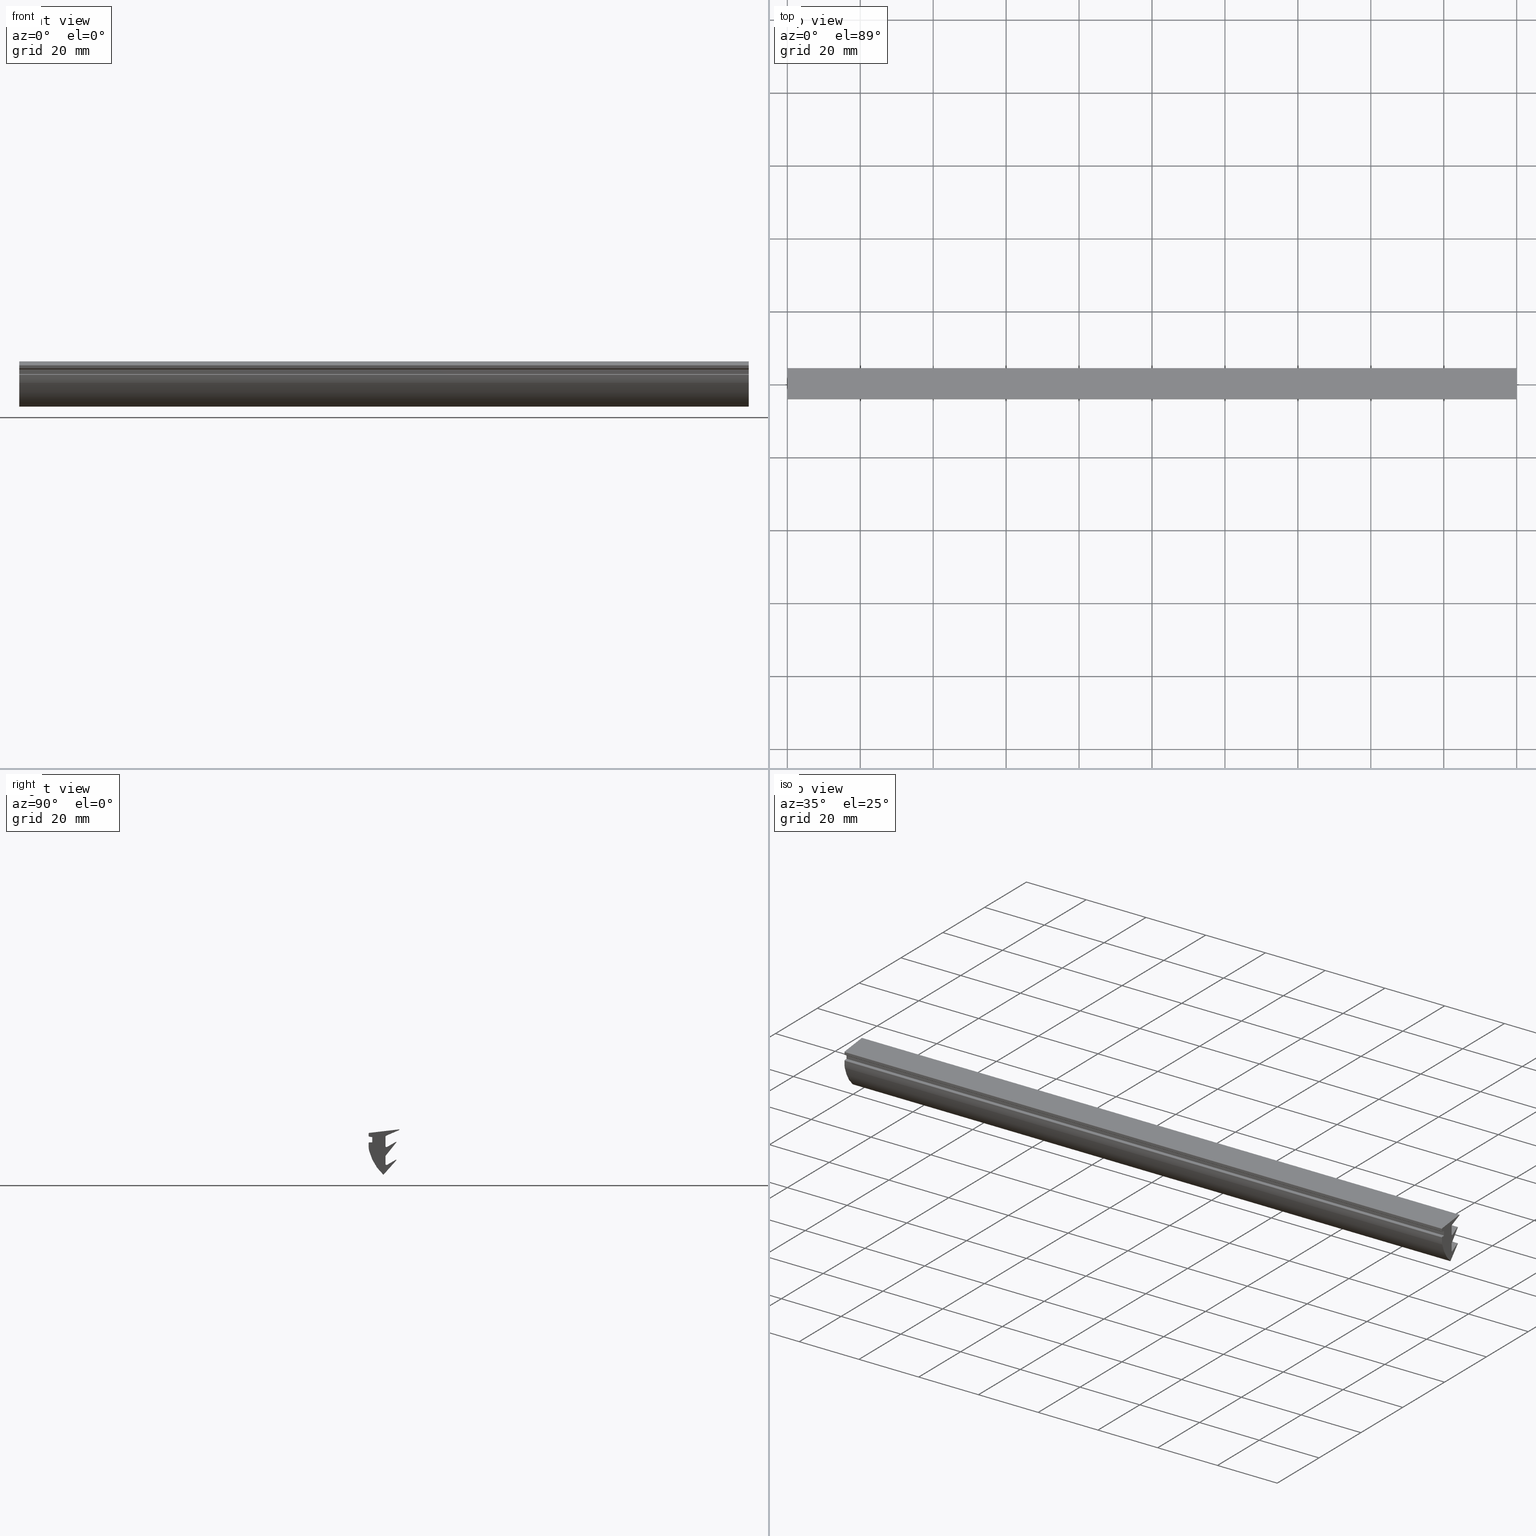
[diagram: canonical four-view strip — front | top / right | iso, engineering-drawing reading convention]
A machine part, canonical four-view strip (front | top / right | iso — engineering-drawing reading convention). The complete STEP part file that produces these views, byte-faithful:
ISO-10303-21;
HEADER;
/****************************************************************
 * Generated by software with PDE/Lib inside                    *
 * PDElib Version v4.4, created Mon 02/23/2004                  *
 * International Technegroup Inc. (www.iti-oh.com)              *
 ****************************************************************/
FILE_DESCRIPTION(('STEP AP203'),'2;1');
FILE_NAME('21.052.00.stp','2011-02-14T09:06:05',(''),(''),'2009.3.110','THINKDESIGN','');
FILE_SCHEMA(('CONFIG_CONTROL_DESIGN'));
ENDSEC;
DATA;
#2=CARTESIAN_POINT('',(200.000000010000010,9.019225754930282,9.767145787373272));
#3=DIRECTION('',(-1.0,0.0,0.0));
#4=DIRECTION('',(0.0,-1.0,6.123234E-017));
#5=AXIS2_PLACEMENT_3D('',#2,#3,#4);
#6=CYLINDRICAL_SURFACE('',#5,13.396656669607449);
#7=CARTESIAN_POINT('',(0.0,-0.143060386871170,-0.006437106278618));
#8=VERTEX_POINT('',#7);
#9=CARTESIAN_POINT('',(0.0,-3.967215729280877,6.477351340832984));
#10=VERTEX_POINT('',#9);
#11=CARTESIAN_POINT('',(0.0,9.019225754930282,9.767145787373272));
#12=DIRECTION('',(-1.0,0.0,0.0));
#13=DIRECTION('',(0.0,-1.0,6.123234E-017));
#14=AXIS2_PLACEMENT_3D('',#11,#12,#13);
#15=CIRCLE('',#14,13.396656669607449);
#16=EDGE_CURVE('',#8,#10,#15,.T.);
#17=ORIENTED_EDGE('',*,*,#16,.F.);
#18=CARTESIAN_POINT('',(200.0,-0.143060386871170,-0.006437106278618));
#19=VERTEX_POINT('',#18);
#20=CARTESIAN_POINT('',(200.0,-0.143060386871170,-0.006437106278618));
#21=DIRECTION('',(-1.0,0.0,0.0));
#22=VECTOR('',#21,200.0);
#23=LINE('',#20,#22);
#24=EDGE_CURVE('',#19,#8,#23,.T.);
#25=ORIENTED_EDGE('',*,*,#24,.F.);
#26=CARTESIAN_POINT('',(200.0,-3.967215729280877,6.477351340832984));
#27=VERTEX_POINT('',#26);
#28=CARTESIAN_POINT('',(200.0,9.019225754930282,9.767145787373272));
#29=DIRECTION('',(-1.0,0.0,0.0));
#30=DIRECTION('',(0.0,-1.0,6.123234E-017));
#31=AXIS2_PLACEMENT_3D('',#28,#29,#30);
#32=CIRCLE('',#31,13.396656669607449);
#33=EDGE_CURVE('',#19,#27,#32,.T.);
#34=ORIENTED_EDGE('',*,*,#33,.T.);
#35=CARTESIAN_POINT('',(200.0,-3.967215729280877,6.477351340832984));
#36=DIRECTION('',(-1.0,0.0,0.0));
#37=VECTOR('',#36,200.0);
#38=LINE('',#35,#37);
#39=EDGE_CURVE('',#27,#10,#38,.T.);
#40=ORIENTED_EDGE('',*,*,#39,.T.);
#41=EDGE_LOOP('',(#17,#25,#34,#40));
#42=FACE_OUTER_BOUND('',#41,.T.);
#43=ADVANCED_FACE('',(#42),#6,.T.);
#44=CARTESIAN_POINT('',(200.000000010000010,1.012162107598378,7.738753825486475));
#45=DIRECTION('',(-1.0,0.0,0.0));
#46=DIRECTION('',(0.0,0.992315294280383,0.123735026315252));
#47=AXIS2_PLACEMENT_3D('',#44,#45,#46);
#48=CYLINDRICAL_SURFACE('',#47,5.136666221460594);
#49=CARTESIAN_POINT('',(0.0,-4.124504113862219,7.738753825486475));
#50=VERTEX_POINT('',#49);
#51=CARTESIAN_POINT('',(0.0,1.012162107598375,7.738753825486475));
#52=DIRECTION('',(-1.0,0.0,0.0));
#53=DIRECTION('',(0.0,1.0,-6.123234E-017));
#54=AXIS2_PLACEMENT_3D('',#51,#52,#53);
#55=CIRCLE('',#54,5.136666221460594);
#56=EDGE_CURVE('',#10,#50,#55,.T.);
#57=ORIENTED_EDGE('',*,*,#56,.F.);
#58=ORIENTED_EDGE('',*,*,#39,.F.);
#59=CARTESIAN_POINT('',(200.0,-4.124504113862219,7.738753825486475));
#60=VERTEX_POINT('',#59);
#61=CARTESIAN_POINT('',(200.0,1.012162107598375,7.738753825486475));
#62=DIRECTION('',(-1.0,0.0,0.0));
#63=DIRECTION('',(0.0,1.0,-6.123234E-017));
#64=AXIS2_PLACEMENT_3D('',#61,#62,#63);
#65=CIRCLE('',#64,5.136666221460594);
#66=EDGE_CURVE('',#27,#60,#65,.T.);
#67=ORIENTED_EDGE('',*,*,#66,.T.);
#68=CARTESIAN_POINT('',(200.0,-4.124504113862219,7.738753825486475));
#69=DIRECTION('',(-1.0,0.0,0.0));
#70=VECTOR('',#69,200.0);
#71=LINE('',#68,#70);
#72=EDGE_CURVE('',#60,#50,#71,.T.);
#73=ORIENTED_EDGE('',*,*,#72,.T.);
#74=EDGE_LOOP('',(#57,#58,#67,#73));
#75=FACE_OUTER_BOUND('',#74,.T.);
#76=ADVANCED_FACE('',(#75),#48,.T.);
#77=CARTESIAN_POINT('',(-10.0,-4.124504113862219,7.694944270244813));
#78=DIRECTION('',(0.0,-1.0,0.0));
#79=DIRECTION('',(1.0,0.0,0.0));
#80=AXIS2_PLACEMENT_3D('',#77,#78,#79);
#81=PLANE('',#80);
#82=CARTESIAN_POINT('',(0.0,-4.124504113862219,8.614944930319709));
#83=VERTEX_POINT('',#82);
#84=CARTESIAN_POINT('',(0.0,-4.124504113862219,7.738753825486475));
#85=DIRECTION('',(0.0,0.0,1.0));
#86=VECTOR('',#85,0.876191104833234);
#87=LINE('',#84,#86);
#88=EDGE_CURVE('',#50,#83,#87,.T.);
#89=ORIENTED_EDGE('',*,*,#88,.F.);
#90=ORIENTED_EDGE('',*,*,#72,.F.);
#91=CARTESIAN_POINT('',(200.0,-4.124504113862219,8.614944930319709));
#92=VERTEX_POINT('',#91);
#93=CARTESIAN_POINT('',(200.0,-4.124504113862219,7.738753825486475));
#94=DIRECTION('',(0.0,0.0,1.0));
#95=VECTOR('',#94,0.876191104833234);
#96=LINE('',#93,#95);
#97=EDGE_CURVE('',#60,#92,#96,.T.);
#98=ORIENTED_EDGE('',*,*,#97,.T.);
#99=CARTESIAN_POINT('',(200.0,-4.124504113862219,8.614944930319709));
#100=DIRECTION('',(-1.0,0.0,0.0));
#101=VECTOR('',#100,200.0);
#102=LINE('',#99,#101);
#103=EDGE_CURVE('',#92,#83,#102,.T.);
#104=ORIENTED_EDGE('',*,*,#103,.T.);
#105=EDGE_LOOP('',(#89,#90,#98,#104));
#106=FACE_OUTER_BOUND('',#105,.T.);
#107=ADVANCED_FACE('',(#106),#81,.T.);
#108=CARTESIAN_POINT('',(200.000000010000010,-3.924504113862220,8.614944930319709));
#109=DIRECTION('',(-1.0,0.0,0.0));
#110=DIRECTION('',(0.0,0.707106781186547,-0.707106781186548));
#111=AXIS2_PLACEMENT_3D('',#108,#109,#110);
#112=CYLINDRICAL_SURFACE('',#111,0.199999999999999);
#113=CARTESIAN_POINT('',(0.0,-3.924504113862220,8.814944930319713));
#114=VERTEX_POINT('',#113);
#115=CARTESIAN_POINT('',(0.0,-3.924504113862220,8.614944930319709));
#116=DIRECTION('',(-1.0,0.0,0.0));
#117=DIRECTION('',(0.0,1.0,-6.123234E-017));
#118=AXIS2_PLACEMENT_3D('',#115,#116,#117);
#119=CIRCLE('',#118,0.199999999999999);
#120=EDGE_CURVE('',#83,#114,#119,.T.);
#121=ORIENTED_EDGE('',*,*,#120,.F.);
#122=ORIENTED_EDGE('',*,*,#103,.F.);
#123=CARTESIAN_POINT('',(200.0,-3.924504113862220,8.814944930319713));
#124=VERTEX_POINT('',#123);
#125=CARTESIAN_POINT('',(200.0,-3.924504113862220,8.614944930319709));
#126=DIRECTION('',(-1.0,0.0,0.0));
#127=DIRECTION('',(0.0,1.0,-6.123234E-017));
#128=AXIS2_PLACEMENT_3D('',#125,#126,#127);
#129=CIRCLE('',#128,0.199999999999999);
#130=EDGE_CURVE('',#92,#124,#129,.T.);
#131=ORIENTED_EDGE('',*,*,#130,.T.);
#132=CARTESIAN_POINT('',(200.0,-3.924504113862220,8.814944930319713));
#133=DIRECTION('',(-1.0,0.0,0.0));
#134=VECTOR('',#133,200.0);
#135=LINE('',#132,#134);
#136=EDGE_CURVE('',#124,#114,#135,.T.);
#137=ORIENTED_EDGE('',*,*,#136,.T.);
#138=EDGE_LOOP('',(#121,#122,#131,#137));
#139=FACE_OUTER_BOUND('',#138,.T.);
#140=ADVANCED_FACE('',(#139),#112,.T.);
#141=CARTESIAN_POINT('',(210.0,-3.196052271566707,8.814944930319713));
#142=DIRECTION('',(0.0,0.0,1.0));
#143=DIRECTION('',(-1.0,0.0,0.0));
#144=AXIS2_PLACEMENT_3D('',#141,#142,#143);
#145=PLANE('',#144);
#146=CARTESIAN_POINT('',(0.0,-3.230740454533159,8.814944930319713));
#147=VERTEX_POINT('',#146);
#148=CARTESIAN_POINT('',(0.0,-3.924504113862220,8.814944930319713));
#149=DIRECTION('',(0.0,1.0,0.0));
#150=VECTOR('',#149,0.693763659329061);
#151=LINE('',#148,#150);
#152=EDGE_CURVE('',#114,#147,#151,.T.);
#153=ORIENTED_EDGE('',*,*,#152,.F.);
#154=ORIENTED_EDGE('',*,*,#136,.F.);
#155=CARTESIAN_POINT('',(200.0,-3.230740454533159,8.814944930319713));
#156=VERTEX_POINT('',#155);
#157=CARTESIAN_POINT('',(200.0,-3.924504113862220,8.814944930319713));
#158=DIRECTION('',(0.0,1.0,0.0));
#159=VECTOR('',#158,0.693763659329061);
#160=LINE('',#157,#159);
#161=EDGE_CURVE('',#124,#156,#160,.T.);
#162=ORIENTED_EDGE('',*,*,#161,.T.);
#163=CARTESIAN_POINT('',(200.0,-3.230740454533159,8.814944930319713));
#164=DIRECTION('',(-1.0,0.0,0.0));
#165=VECTOR('',#164,200.0);
#166=LINE('',#163,#165);
#167=EDGE_CURVE('',#156,#147,#166,.T.);
#168=ORIENTED_EDGE('',*,*,#167,.T.);
#169=EDGE_LOOP('',(#153,#154,#162,#168));
#170=FACE_OUTER_BOUND('',#169,.T.);
#171=ADVANCED_FACE('',(#170),#145,.T.);
#172=CARTESIAN_POINT('',(200.000000010000010,-3.230740454533159,8.914944930319715));
#173=DIRECTION('',(-1.0,0.0,0.0));
#174=DIRECTION('',(0.0,-1.0,6.123234E-017));
#175=AXIS2_PLACEMENT_3D('',#172,#173,#174);
#176=CYLINDRICAL_SURFACE('',#175,0.099999999999999);
#177=CARTESIAN_POINT('',(0.0,-3.130740454533157,8.914944930319708));
#178=VERTEX_POINT('',#177);
#179=CARTESIAN_POINT('',(0.0,-3.230740454533159,8.914944930319715));
#180=DIRECTION('',(1.0,0.0,0.0));
#181=DIRECTION('',(0.0,-1.0,6.123234E-017));
#182=AXIS2_PLACEMENT_3D('',#179,#180,#181);
#183=CIRCLE('',#182,0.099999999999999);
#184=EDGE_CURVE('',#147,#178,#183,.T.);
#185=ORIENTED_EDGE('',*,*,#184,.F.);
#186=ORIENTED_EDGE('',*,*,#167,.F.);
#187=CARTESIAN_POINT('',(200.0,-3.130740454533157,8.914944930319708));
#188=VERTEX_POINT('',#187);
#189=CARTESIAN_POINT('',(200.0,-3.230740454533159,8.914944930319715));
#190=DIRECTION('',(1.0,0.0,0.0));
#191=DIRECTION('',(0.0,-1.0,6.123234E-017));
#192=AXIS2_PLACEMENT_3D('',#189,#190,#191);
#193=CIRCLE('',#192,0.099999999999999);
#194=EDGE_CURVE('',#156,#188,#193,.T.);
#195=ORIENTED_EDGE('',*,*,#194,.T.);
#196=CARTESIAN_POINT('',(200.0,-3.130740454533157,8.914944930319708));
#197=DIRECTION('',(-1.0,0.0,0.0));
#198=VECTOR('',#197,200.0);
#199=LINE('',#196,#198);
#200=EDGE_CURVE('',#188,#178,#199,.T.);
#201=ORIENTED_EDGE('',*,*,#200,.T.);
#202=EDGE_LOOP('',(#185,#186,#195,#201));
#203=FACE_OUTER_BOUND('',#202,.T.);
#204=ADVANCED_FACE('',(#203),#176,.F.);
#205=CARTESIAN_POINT('',(-10.0,-3.130740454533157,8.853196808424455));
#206=DIRECTION('',(0.0,-1.0,0.0));
#207=DIRECTION('',(1.0,0.0,0.0));
#208=AXIS2_PLACEMENT_3D('',#205,#206,#207);
#209=PLANE('',#208);
#210=CARTESIAN_POINT('',(0.0,-3.130740454533157,10.149907368224751));
#211=VERTEX_POINT('',#210);
#212=CARTESIAN_POINT('',(0.0,-3.130740454533157,8.914944930319708));
#213=DIRECTION('',(0.0,0.0,1.0));
#214=VECTOR('',#213,1.234962437905043);
#215=LINE('',#212,#214);
#216=EDGE_CURVE('',#178,#211,#215,.T.);
#217=ORIENTED_EDGE('',*,*,#216,.F.);
#218=ORIENTED_EDGE('',*,*,#200,.F.);
#219=CARTESIAN_POINT('',(200.0,-3.130740454533157,10.149907368224751));
#220=VERTEX_POINT('',#219);
#221=CARTESIAN_POINT('',(200.0,-3.130740454533157,8.914944930319708));
#222=DIRECTION('',(0.0,0.0,1.0));
#223=VECTOR('',#222,1.234962437905043);
#224=LINE('',#221,#223);
#225=EDGE_CURVE('',#188,#220,#224,.T.);
#226=ORIENTED_EDGE('',*,*,#225,.T.);
#227=CARTESIAN_POINT('',(200.0,-3.130740454533157,10.149907368224751));
#228=DIRECTION('',(-1.0,0.0,0.0));
#229=VECTOR('',#228,200.0);
#230=LINE('',#227,#229);
#231=EDGE_CURVE('',#220,#211,#230,.T.);
#232=ORIENTED_EDGE('',*,*,#231,.T.);
#233=EDGE_LOOP('',(#217,#218,#226,#232));
#234=FACE_OUTER_BOUND('',#233,.T.);
#235=ADVANCED_FACE('',(#234),#209,.T.);
#236=CARTESIAN_POINT('',(200.000000010000010,-3.230740454533159,10.149907368224751));
#237=DIRECTION('',(-1.0,0.0,0.0));
#238=DIRECTION('',(0.0,-1.0,6.123234E-017));
#239=AXIS2_PLACEMENT_3D('',#236,#237,#238);
#240=CYLINDRICAL_SURFACE('',#239,0.099999999999999);
#241=CARTESIAN_POINT('',(0.0,-3.214995679239770,10.248660100090557));
#242=VERTEX_POINT('',#241);
#243=CARTESIAN_POINT('',(0.0,-3.230740454533159,10.149907368224751));
#244=DIRECTION('',(1.0,0.0,0.0));
#245=DIRECTION('',(0.0,-1.0,6.123234E-017));
#246=AXIS2_PLACEMENT_3D('',#243,#244,#245);
#247=CIRCLE('',#246,0.099999999999999);
#248=EDGE_CURVE('',#211,#242,#247,.T.);
#249=ORIENTED_EDGE('',*,*,#248,.F.);
#250=ORIENTED_EDGE('',*,*,#231,.F.);
#251=CARTESIAN_POINT('',(200.0,-3.214995679239770,10.248660100090557));
#252=VERTEX_POINT('',#251);
#253=CARTESIAN_POINT('',(200.0,-3.230740454533159,10.149907368224751));
#254=DIRECTION('',(1.0,0.0,0.0));
#255=DIRECTION('',(0.0,-1.0,6.123234E-017));
#256=AXIS2_PLACEMENT_3D('',#253,#254,#255);
#257=CIRCLE('',#256,0.099999999999999);
#258=EDGE_CURVE('',#220,#252,#257,.T.);
#259=ORIENTED_EDGE('',*,*,#258,.T.);
#260=CARTESIAN_POINT('',(200.0,-3.214995679239770,10.248660100090557));
#261=DIRECTION('',(-1.0,0.0,0.0));
#262=VECTOR('',#261,200.0);
#263=LINE('',#260,#262);
#264=EDGE_CURVE('',#252,#242,#263,.T.);
#265=ORIENTED_EDGE('',*,*,#264,.T.);
#266=EDGE_LOOP('',(#249,#250,#259,#265));
#267=FACE_OUTER_BOUND('',#266,.T.);
#268=ADVANCED_FACE('',(#267),#240,.F.);
#269=CARTESIAN_POINT('',(210.0,-3.177945779979311,10.242752999320009));
#270=DIRECTION('',(0.0,-0.157447752933786,-0.987527318658123));
#271=DIRECTION('',(0.0,-0.987527318658123,0.157447752933786));
#272=AXIS2_PLACEMENT_3D('',#269,#270,#271);
#273=PLANE('',#272);
#274=CARTESIAN_POINT('',(0.0,-3.955993664448972,10.366802115501516));
#275=VERTEX_POINT('',#274);
#276=CARTESIAN_POINT('',(0.0,-3.214995679239770,10.248660100090557));
#277=DIRECTION('',(0.0,-0.987527318658123,0.157447752933785));
#278=VECTOR('',#277,0.750356948318238);
#279=LINE('',#276,#278);
#280=EDGE_CURVE('',#242,#275,#279,.T.);
#281=ORIENTED_EDGE('',*,*,#280,.F.);
#282=ORIENTED_EDGE('',*,*,#264,.F.);
#283=CARTESIAN_POINT('',(200.0,-3.955993664448972,10.366802115501516));
#284=VERTEX_POINT('',#283);
#285=CARTESIAN_POINT('',(200.0,-3.214995679239770,10.248660100090557));
#286=DIRECTION('',(0.0,-0.987527318658123,0.157447752933785));
#287=VECTOR('',#286,0.750356948318238);
#288=LINE('',#285,#287);
#289=EDGE_CURVE('',#252,#284,#288,.T.);
#290=ORIENTED_EDGE('',*,*,#289,.T.);
#291=CARTESIAN_POINT('',(200.0,-3.955993664448972,10.366802115501516));
#292=DIRECTION('',(-1.0,0.0,0.0));
#293=VECTOR('',#292,200.0);
#294=LINE('',#291,#293);
#295=EDGE_CURVE('',#284,#275,#294,.T.);
#296=ORIENTED_EDGE('',*,*,#295,.T.);
#297=EDGE_LOOP('',(#281,#282,#290,#296));
#298=FACE_OUTER_BOUND('',#297,.T.);
#299=ADVANCED_FACE('',(#298),#273,.T.);
#300=CARTESIAN_POINT('',(200.000000010000010,-3.924504113862220,10.564307579233139));
#301=DIRECTION('',(-1.0,0.0,0.0));
#302=DIRECTION('',(0.0,0.760739033090113,0.649057873793331));
#303=AXIS2_PLACEMENT_3D('',#300,#301,#302);
#304=CYLINDRICAL_SURFACE('',#303,0.199999999999999);
#305=CARTESIAN_POINT('',(0.0,-4.124504113862219,10.564307579233141));
#306=VERTEX_POINT('',#305);
#307=CARTESIAN_POINT('',(0.0,-3.924504113862220,10.564307579233141));
#308=DIRECTION('',(-1.0,0.0,0.0));
#309=DIRECTION('',(0.0,1.0,-6.123234E-017));
#310=AXIS2_PLACEMENT_3D('',#307,#308,#309);
#311=CIRCLE('',#310,0.199999999999999);
#312=EDGE_CURVE('',#275,#306,#311,.T.);
#313=ORIENTED_EDGE('',*,*,#312,.F.);
#314=ORIENTED_EDGE('',*,*,#295,.F.);
#315=CARTESIAN_POINT('',(200.0,-4.124504113862219,10.564307579233141));
#316=VERTEX_POINT('',#315);
#317=CARTESIAN_POINT('',(200.0,-3.924504113862220,10.564307579233141));
#318=DIRECTION('',(-1.0,0.0,0.0));
#319=DIRECTION('',(0.0,1.0,-6.123234E-017));
#320=AXIS2_PLACEMENT_3D('',#317,#318,#319);
#321=CIRCLE('',#320,0.199999999999999);
#322=EDGE_CURVE('',#284,#316,#321,.T.);
#323=ORIENTED_EDGE('',*,*,#322,.T.);
#324=CARTESIAN_POINT('',(200.0,-4.124504113862219,10.564307579233141));
#325=DIRECTION('',(-1.0,0.0,0.0));
#326=VECTOR('',#325,200.0);
#327=LINE('',#324,#326);
#328=EDGE_CURVE('',#316,#306,#327,.T.);
#329=ORIENTED_EDGE('',*,*,#328,.T.);
#330=EDGE_LOOP('',(#313,#314,#323,#329));
#331=FACE_OUTER_BOUND('',#330,.T.);
#332=ADVANCED_FACE('',(#331),#304,.T.);
#333=CARTESIAN_POINT('',(-10.0,-4.124504113862219,10.531732999676530));
#334=DIRECTION('',(0.0,-1.0,0.0));
#335=DIRECTION('',(1.0,0.0,0.0));
#336=AXIS2_PLACEMENT_3D('',#333,#334,#335);
#337=PLANE('',#336);
#338=CARTESIAN_POINT('',(0.0,-4.124504113862219,11.215799170365372));
#339=VERTEX_POINT('',#338);
#340=CARTESIAN_POINT('',(0.0,-4.124504113862219,10.564307579233141));
#341=DIRECTION('',(0.0,0.0,1.0));
#342=VECTOR('',#341,0.651491591132229);
#343=LINE('',#340,#342);
#344=EDGE_CURVE('',#306,#339,#343,.T.);
#345=ORIENTED_EDGE('',*,*,#344,.F.);
#346=ORIENTED_EDGE('',*,*,#328,.F.);
#347=CARTESIAN_POINT('',(200.0,-4.124504113862219,11.215799170365372));
#348=VERTEX_POINT('',#347);
#349=CARTESIAN_POINT('',(200.0,-4.124504113862219,10.564307579233141));
#350=DIRECTION('',(0.0,0.0,1.0));
#351=VECTOR('',#350,0.651491591132229);
#352=LINE('',#349,#351);
#353=EDGE_CURVE('',#316,#348,#352,.T.);
#354=ORIENTED_EDGE('',*,*,#353,.T.);
#355=CARTESIAN_POINT('',(200.0,-4.124504113862219,11.215799170365372));
#356=DIRECTION('',(-1.0,0.0,0.0));
#357=VECTOR('',#356,200.0);
#358=LINE('',#355,#357);
#359=EDGE_CURVE('',#348,#339,#358,.T.);
#360=ORIENTED_EDGE('',*,*,#359,.T.);
#361=EDGE_LOOP('',(#345,#346,#354,#360));
#362=FACE_OUTER_BOUND('',#361,.T.);
#363=ADVANCED_FACE('',(#362),#337,.T.);
#364=CARTESIAN_POINT('',(200.000000010000010,-3.924504113862213,11.215799170365372));
#365=DIRECTION('',(-1.0,0.0,0.0));
#366=DIRECTION('',(0.0,0.747238876674902,-0.664555536569842));
#367=AXIS2_PLACEMENT_3D('',#364,#365,#366);
#368=CYLINDRICAL_SURFACE('',#367,0.199999999999999);
#369=CARTESIAN_POINT('',(0.0,-3.947850489387960,11.414431863419185));
#370=VERTEX_POINT('',#369);
#371=CARTESIAN_POINT('',(0.0,-3.924504113862213,11.215799170365372));
#372=DIRECTION('',(-1.0,0.0,0.0));
#373=DIRECTION('',(0.0,-1.0,6.123234E-017));
#374=AXIS2_PLACEMENT_3D('',#371,#372,#373);
#375=CIRCLE('',#374,0.199999999999999);
#376=EDGE_CURVE('',#339,#370,#375,.T.);
#377=ORIENTED_EDGE('',*,*,#376,.F.);
#378=ORIENTED_EDGE('',*,*,#359,.F.);
#379=CARTESIAN_POINT('',(200.0,-3.947850489387960,11.414431863419185));
#380=VERTEX_POINT('',#379);
#381=CARTESIAN_POINT('',(200.0,-3.924504113862213,11.215799170365372));
#382=DIRECTION('',(-1.0,0.0,0.0));
#383=DIRECTION('',(0.0,-1.0,6.123234E-017));
#384=AXIS2_PLACEMENT_3D('',#381,#382,#383);
#385=CIRCLE('',#384,0.199999999999999);
#386=EDGE_CURVE('',#348,#380,#385,.T.);
#387=ORIENTED_EDGE('',*,*,#386,.T.);
#388=CARTESIAN_POINT('',(200.0,-3.947850489387960,11.414431863419185));
#389=DIRECTION('',(-1.0,0.0,0.0));
#390=VECTOR('',#389,200.0);
#391=LINE('',#388,#390);
#392=EDGE_CURVE('',#380,#370,#391,.T.);
#393=ORIENTED_EDGE('',*,*,#392,.T.);
#394=EDGE_LOOP('',(#377,#378,#387,#393));
#395=FACE_OUTER_BOUND('',#394,.T.);
#396=ADVANCED_FACE('',(#395),#368,.T.);
#397=CARTESIAN_POINT('',(210.0,-4.355091858343172,11.366566581108046));
#398=DIRECTION('',(0.0,-0.116731877628694,0.993163465269076));
#399=DIRECTION('',(0.0,0.993163465269076,0.116731877628694));
#400=AXIS2_PLACEMENT_3D('',#397,#398,#399);
#401=PLANE('',#400);
#402=CARTESIAN_POINT('',(0.0,4.196976889716321,12.371737509642145));
#403=VERTEX_POINT('',#402);
#404=CARTESIAN_POINT('',(0.0,-3.947850489387960,11.414431863419193));
#405=DIRECTION('',(0.0,0.993163465269076,0.116731877628694));
#406=VECTOR('',#405,8.200893069397814);
#407=LINE('',#404,#406);
#408=EDGE_CURVE('',#370,#403,#407,.T.);
#409=ORIENTED_EDGE('',*,*,#408,.F.);
#410=ORIENTED_EDGE('',*,*,#392,.F.);
#411=CARTESIAN_POINT('',(200.0,4.196976889716321,12.371737509642145));
#412=VERTEX_POINT('',#411);
#413=CARTESIAN_POINT('',(200.0,-3.947850489387960,11.414431863419193));
#414=DIRECTION('',(0.0,0.993163465269076,0.116731877628694));
#415=VECTOR('',#414,8.200893069397814);
#416=LINE('',#413,#415);
#417=EDGE_CURVE('',#380,#412,#416,.T.);
#418=ORIENTED_EDGE('',*,*,#417,.T.);
#419=CARTESIAN_POINT('',(200.0,4.196976889716321,12.371737509642145));
#420=DIRECTION('',(-1.0,0.0,0.0));
#421=VECTOR('',#420,200.0);
#422=LINE('',#419,#421);
#423=EDGE_CURVE('',#412,#403,#422,.T.);
#424=ORIENTED_EDGE('',*,*,#423,.T.);
#425=EDGE_LOOP('',(#409,#410,#418,#424));
#426=FACE_OUTER_BOUND('',#425,.T.);
#427=ADVANCED_FACE('',(#426),#401,.T.);
#428=CARTESIAN_POINT('',(200.000000010000010,4.208650077479192,12.272421163115240));
#429=DIRECTION('',(-1.0,0.0,0.0));
#430=DIRECTION('',(0.0,-1.0,6.123234E-017));
#431=AXIS2_PLACEMENT_3D('',#428,#429,#430);
#432=CYLINDRICAL_SURFACE('',#431,0.099999999999999);
#433=CARTESIAN_POINT('',(0.0,4.248298030908497,12.180616807070066));
#434=VERTEX_POINT('',#433);
#435=CARTESIAN_POINT('',(0.0,4.208650077479192,12.272421163115240));
#436=DIRECTION('',(-1.0,0.0,0.0));
#437=DIRECTION('',(0.0,-1.0,6.123234E-017));
#438=AXIS2_PLACEMENT_3D('',#435,#436,#437);
#439=CIRCLE('',#438,0.099999999999999);
#440=EDGE_CURVE('',#403,#434,#439,.T.);
#441=ORIENTED_EDGE('',*,*,#440,.F.);
#442=ORIENTED_EDGE('',*,*,#423,.F.);
#443=CARTESIAN_POINT('',(200.0,4.248298030908497,12.180616807070066));
#444=VERTEX_POINT('',#443);
#445=CARTESIAN_POINT('',(200.0,4.208650077479192,12.272421163115240));
#446=DIRECTION('',(-1.0,0.0,0.0));
#447=DIRECTION('',(0.0,-1.0,6.123234E-017));
#448=AXIS2_PLACEMENT_3D('',#445,#446,#447);
#449=CIRCLE('',#448,0.099999999999999);
#450=EDGE_CURVE('',#412,#444,#449,.T.);
#451=ORIENTED_EDGE('',*,*,#450,.T.);
#452=CARTESIAN_POINT('',(200.0,4.248298030908497,12.180616807070066));
#453=DIRECTION('',(-1.0,0.0,0.0));
#454=VECTOR('',#453,200.0);
#455=LINE('',#452,#454);
#456=EDGE_CURVE('',#444,#434,#455,.T.);
#457=ORIENTED_EDGE('',*,*,#456,.T.);
#458=EDGE_LOOP('',(#441,#442,#451,#457));
#459=FACE_OUTER_BOUND('',#458,.T.);
#460=ADVANCED_FACE('',(#459),#432,.T.);
#461=CARTESIAN_POINT('',(210.0,4.426793699312068,12.257704521129249));
#462=DIRECTION('',(0.0,0.396479534293032,-0.918043560451671));
#463=DIRECTION('',(0.0,-0.918043560451671,-0.396479534293032));
#464=AXIS2_PLACEMENT_3D('',#461,#462,#463);
#465=PLANE('',#464);
#466=CARTESIAN_POINT('',(0.0,0.678384662837061,10.638862525886434));
#467=VERTEX_POINT('',#466);
#468=CARTESIAN_POINT('',(0.0,4.248298030908497,12.180616807070066));
#469=DIRECTION('',(0.0,-0.918043560451671,-0.396479534293032));
#470=VECTOR('',#469,3.888609998326290);
#471=LINE('',#468,#470);
#472=EDGE_CURVE('',#434,#467,#471,.T.);
#473=ORIENTED_EDGE('',*,*,#472,.F.);
#474=ORIENTED_EDGE('',*,*,#456,.F.);
#475=CARTESIAN_POINT('',(200.0,0.678384662837061,10.638862525886434));
#476=VERTEX_POINT('',#475);
#477=CARTESIAN_POINT('',(200.0,4.248298030908497,12.180616807070066));
#478=DIRECTION('',(0.0,-0.918043560451671,-0.396479534293032));
#479=VECTOR('',#478,3.888609998326290);
#480=LINE('',#477,#479);
#481=EDGE_CURVE('',#444,#476,#480,.T.);
#482=ORIENTED_EDGE('',*,*,#481,.T.);
#483=CARTESIAN_POINT('',(200.0,0.678384662837061,10.638862525886434));
#484=DIRECTION('',(-1.0,0.0,0.0));
#485=VECTOR('',#484,200.0);
#486=LINE('',#483,#485);
#487=EDGE_CURVE('',#476,#467,#486,.T.);
#488=ORIENTED_EDGE('',*,*,#487,.T.);
#489=EDGE_LOOP('',(#473,#474,#482,#488));
#490=FACE_OUTER_BOUND('',#489,.T.);
#491=ADVANCED_FACE('',(#490),#465,.T.);
#492=CARTESIAN_POINT('',(200.000000010000010,0.797328523124975,10.363449457750928));
#493=DIRECTION('',(-1.0,0.0,0.0));
#494=DIRECTION('',(0.0,0.835607424061393,-0.549327072747633));
#495=AXIS2_PLACEMENT_3D('',#492,#493,#494);
#496=CYLINDRICAL_SURFACE('',#495,0.300000000000001);
#497=CARTESIAN_POINT('',(0.0,0.497328523124963,10.363449457750928));
#498=VERTEX_POINT('',#497);
#499=CARTESIAN_POINT('',(0.0,0.797328523124975,10.363449457750928));
#500=DIRECTION('',(1.0,0.0,0.0));
#501=DIRECTION('',(0.0,1.0,-6.123234E-017));
#502=AXIS2_PLACEMENT_3D('',#499,#500,#501);
#503=CIRCLE('',#502,0.300000000000001);
#504=EDGE_CURVE('',#467,#498,#503,.T.);
#505=ORIENTED_EDGE('',*,*,#504,.F.);
#506=ORIENTED_EDGE('',*,*,#487,.F.);
#507=CARTESIAN_POINT('',(200.0,0.497328523124963,10.363449457750928));
#508=VERTEX_POINT('',#507);
#509=CARTESIAN_POINT('',(200.0,0.797328523124975,10.363449457750928));
#510=DIRECTION('',(1.0,0.0,0.0));
#511=DIRECTION('',(0.0,1.0,-6.123234E-017));
#512=AXIS2_PLACEMENT_3D('',#509,#510,#511);
#513=CIRCLE('',#512,0.300000000000001);
#514=EDGE_CURVE('',#476,#508,#513,.T.);
#515=ORIENTED_EDGE('',*,*,#514,.T.);
#516=CARTESIAN_POINT('',(200.0,0.497328523124963,10.363449457750928));
#517=DIRECTION('',(-1.0,0.0,0.0));
#518=VECTOR('',#517,200.0);
#519=LINE('',#516,#518);
#520=EDGE_CURVE('',#508,#498,#519,.T.);
#521=ORIENTED_EDGE('',*,*,#520,.T.);
#522=EDGE_LOOP('',(#505,#506,#515,#521));
#523=FACE_OUTER_BOUND('',#522,.T.);
#524=ADVANCED_FACE('',(#523),#496,.F.);
#525=CARTESIAN_POINT('',(210.0,0.497328523124963,7.697048872298092));
#526=DIRECTION('',(0.0,1.0,0.0));
#527=DIRECTION('',(-1.0,0.0,0.0));
#528=AXIS2_PLACEMENT_3D('',#525,#526,#527);
#529=PLANE('',#528);
#530=CARTESIAN_POINT('',(0.0,0.497328523124963,7.824020328748228));
#531=VERTEX_POINT('',#530);
#532=CARTESIAN_POINT('',(0.0,0.497328523124963,10.363449457750928));
#533=DIRECTION('',(0.0,0.0,-1.0));
#534=VECTOR('',#533,2.539429129002700);
#535=LINE('',#532,#534);
#536=EDGE_CURVE('',#498,#531,#535,.T.);
#537=ORIENTED_EDGE('',*,*,#536,.F.);
#538=ORIENTED_EDGE('',*,*,#520,.F.);
#539=CARTESIAN_POINT('',(200.0,0.497328523124963,7.824020328748228));
#540=VERTEX_POINT('',#539);
#541=CARTESIAN_POINT('',(200.0,0.497328523124963,10.363449457750928));
#542=DIRECTION('',(0.0,0.0,-1.0));
#543=VECTOR('',#542,2.539429129002700);
#544=LINE('',#541,#543);
#545=EDGE_CURVE('',#508,#540,#544,.T.);
#546=ORIENTED_EDGE('',*,*,#545,.T.);
#547=CARTESIAN_POINT('',(200.0,0.497328523124963,7.824020328748228));
#548=DIRECTION('',(-1.0,0.0,0.0));
#549=VECTOR('',#548,200.0);
#550=LINE('',#547,#549);
#551=EDGE_CURVE('',#540,#531,#550,.T.);
#552=ORIENTED_EDGE('',*,*,#551,.T.);
#553=EDGE_LOOP('',(#537,#538,#546,#552));
#554=FACE_OUTER_BOUND('',#553,.T.);
#555=ADVANCED_FACE('',(#554),#529,.T.);
#556=CARTESIAN_POINT('',(200.000000010000010,0.797328523124964,7.824020328748224));
#557=DIRECTION('',(-1.0,0.0,0.0));
#558=DIRECTION('',(0.0,0.499999999999984,0.866025403784448));
#559=AXIS2_PLACEMENT_3D('',#556,#557,#558);
#560=CYLINDRICAL_SURFACE('',#559,0.300000000000001);
#561=CARTESIAN_POINT('',(0.0,0.947328523124973,7.564212707612903));
#562=VERTEX_POINT('',#561);
#563=CARTESIAN_POINT('',(0.0,0.797328523124964,7.824020328748228));
#564=DIRECTION('',(1.0,0.0,0.0));
#565=DIRECTION('',(0.0,1.0,-6.123234E-017));
#566=AXIS2_PLACEMENT_3D('',#563,#564,#565);
#567=CIRCLE('',#566,0.300000000000001);
#568=EDGE_CURVE('',#531,#562,#567,.T.);
#569=ORIENTED_EDGE('',*,*,#568,.F.);
#570=ORIENTED_EDGE('',*,*,#551,.F.);
#571=CARTESIAN_POINT('',(200.0,0.947328523124973,7.564212707612903));
#572=VERTEX_POINT('',#571);
#573=CARTESIAN_POINT('',(200.0,0.797328523124964,7.824020328748228));
#574=DIRECTION('',(1.0,0.0,0.0));
#575=DIRECTION('',(0.0,1.0,-6.123234E-017));
#576=AXIS2_PLACEMENT_3D('',#573,#574,#575);
#577=CIRCLE('',#576,0.300000000000001);
#578=EDGE_CURVE('',#540,#572,#577,.T.);
#579=ORIENTED_EDGE('',*,*,#578,.T.);
#580=CARTESIAN_POINT('',(200.0,0.947328523124973,7.564212707612903));
#581=DIRECTION('',(-1.0,0.0,0.0));
#582=VECTOR('',#581,200.0);
#583=LINE('',#580,#582);
#584=EDGE_CURVE('',#572,#562,#583,.T.);
#585=ORIENTED_EDGE('',*,*,#584,.T.);
#586=EDGE_LOOP('',(#569,#570,#579,#585));
#587=FACE_OUTER_BOUND('',#586,.T.);
#588=ADVANCED_FACE('',(#587),#560,.F.);
#589=CARTESIAN_POINT('',(210.0,0.827594908238130,7.495084472826937));
#590=DIRECTION('',(0.0,-0.500000000000000,0.866025403784439));
#591=DIRECTION('',(0.0,0.866025403784439,0.500000000000000));
#592=AXIS2_PLACEMENT_3D('',#589,#590,#591);
#593=PLANE('',#592);
#594=CARTESIAN_POINT('',(0.0,3.342000820861923,8.946777403332272));
#595=VERTEX_POINT('',#594);
#596=CARTESIAN_POINT('',(0.0,0.947328523124973,7.564212707612903));
#597=DIRECTION('',(0.0,0.866025403784438,0.500000000000000));
#598=VECTOR('',#597,2.765129391438736);
#599=LINE('',#596,#598);
#600=EDGE_CURVE('',#562,#595,#599,.T.);
#601=ORIENTED_EDGE('',*,*,#600,.F.);
#602=ORIENTED_EDGE('',*,*,#584,.F.);
#603=CARTESIAN_POINT('',(200.0,3.342000820861923,8.946777403332272));
#604=VERTEX_POINT('',#603);
#605=CARTESIAN_POINT('',(200.0,0.947328523124973,7.564212707612903));
#606=DIRECTION('',(0.0,0.866025403784438,0.500000000000000));
#607=VECTOR('',#606,2.765129391438736);
#608=LINE('',#605,#607);
#609=EDGE_CURVE('',#572,#604,#608,.T.);
#610=ORIENTED_EDGE('',*,*,#609,.T.);
#611=CARTESIAN_POINT('',(200.0,3.342000820861923,8.946777403332272));
#612=DIRECTION('',(-1.0,0.0,0.0));
#613=VECTOR('',#612,200.0);
#614=LINE('',#611,#613);
#615=EDGE_CURVE('',#604,#595,#614,.T.);
#616=ORIENTED_EDGE('',*,*,#615,.T.);
#617=EDGE_LOOP('',(#601,#602,#610,#616));
#618=FACE_OUTER_BOUND('',#617,.T.);
#619=ADVANCED_FACE('',(#618),#593,.T.);
#620=CARTESIAN_POINT('',(200.000000010000010,3.392000820861938,8.860174862953832));
#621=DIRECTION('',(-1.0,0.0,0.0));
#622=DIRECTION('',(0.0,-1.0,6.123234E-017));
#623=AXIS2_PLACEMENT_3D('',#620,#621,#622);
#624=CYLINDRICAL_SURFACE('',#623,0.099999999999999);
#625=CARTESIAN_POINT('',(0.0,3.470100011703124,8.797720748678218));
#626=VERTEX_POINT('',#625);
#627=CARTESIAN_POINT('',(0.0,3.392000820861938,8.860174862953832));
#628=DIRECTION('',(-1.0,0.0,0.0));
#629=DIRECTION('',(0.0,-1.0,6.123234E-017));
#630=AXIS2_PLACEMENT_3D('',#627,#628,#629);
#631=CIRCLE('',#630,0.099999999999999);
#632=EDGE_CURVE('',#595,#626,#631,.T.);
#633=ORIENTED_EDGE('',*,*,#632,.F.);
#634=ORIENTED_EDGE('',*,*,#615,.F.);
#635=CARTESIAN_POINT('',(200.0,3.470100011703124,8.797720748678218));
#636=VERTEX_POINT('',#635);
#637=CARTESIAN_POINT('',(200.0,3.392000820861938,8.860174862953832));
#638=DIRECTION('',(-1.0,0.0,0.0));
#639=DIRECTION('',(0.0,-1.0,6.123234E-017));
#640=AXIS2_PLACEMENT_3D('',#637,#638,#639);
#641=CIRCLE('',#640,0.099999999999999);
#642=EDGE_CURVE('',#604,#636,#641,.T.);
#643=ORIENTED_EDGE('',*,*,#642,.T.);
#644=CARTESIAN_POINT('',(200.0,3.470100011703124,8.797720748678218));
#645=DIRECTION('',(-1.0,0.0,0.0));
#646=VECTOR('',#645,200.0);
#647=LINE('',#644,#646);
#648=EDGE_CURVE('',#636,#626,#647,.T.);
#649=ORIENTED_EDGE('',*,*,#648,.T.);
#650=EDGE_LOOP('',(#633,#634,#643,#649));
#651=FACE_OUTER_BOUND('',#650,.T.);
#652=ADVANCED_FACE('',(#651),#624,.T.);
#653=CARTESIAN_POINT('',(210.0,3.615453464758211,8.979485988666703));
#654=DIRECTION('',(0.0,0.780991908411900,-0.624541142756134));
#655=DIRECTION('',(0.0,-0.624541142756134,-0.780991908411900));
#656=AXIS2_PLACEMENT_3D('',#653,#654,#655);
#657=PLANE('',#656);
#658=CARTESIAN_POINT('',(0.0,0.563030950601394,5.162415948908523));
#659=VERTEX_POINT('',#658);
#660=CARTESIAN_POINT('',(0.0,3.470100011703124,8.797720748678218));
#661=DIRECTION('',(0.0,-0.624541142756134,-0.780991908411900));
#662=VECTOR('',#661,4.654727866722554);
#663=LINE('',#660,#662);
#664=EDGE_CURVE('',#626,#659,#663,.T.);
#665=ORIENTED_EDGE('',*,*,#664,.F.);
#666=ORIENTED_EDGE('',*,*,#648,.F.);
#667=CARTESIAN_POINT('',(200.0,0.563030950601394,5.162415948908523));
#668=VERTEX_POINT('',#667);
#669=CARTESIAN_POINT('',(200.0,3.470100011703124,8.797720748678218));
#670=DIRECTION('',(0.0,-0.624541142756134,-0.780991908411900));
#671=VECTOR('',#670,4.654727866722554);
#672=LINE('',#669,#671);
#673=EDGE_CURVE('',#636,#668,#672,.T.);
#674=ORIENTED_EDGE('',*,*,#673,.T.);
#675=CARTESIAN_POINT('',(200.0,0.563030950601394,5.162415948908523));
#676=DIRECTION('',(-1.0,0.0,0.0));
#677=VECTOR('',#676,200.0);
#678=LINE('',#675,#677);
#679=EDGE_CURVE('',#668,#659,#678,.T.);
#680=ORIENTED_EDGE('',*,*,#679,.T.);
#681=EDGE_LOOP('',(#665,#666,#674,#680));
#682=FACE_OUTER_BOUND('',#681,.T.);
#683=ADVANCED_FACE('',(#682),#657,.T.);
#684=CARTESIAN_POINT('',(200.000000010000010,0.797328523124968,4.975053606081678));
#685=DIRECTION('',(-1.0,0.0,0.0));
#686=DIRECTION('',(0.0,0.943660931800160,-0.330913955272445));
#687=AXIS2_PLACEMENT_3D('',#684,#685,#686);
#688=CYLINDRICAL_SURFACE('',#687,0.300000000000001);
#689=CARTESIAN_POINT('',(0.0,0.497328523124963,4.975053606081678));
#690=VERTEX_POINT('',#689);
#691=CARTESIAN_POINT('',(0.0,0.797328523124964,4.975053606081678));
#692=DIRECTION('',(1.0,0.0,0.0));
#693=DIRECTION('',(0.0,1.0,-6.123234E-017));
#694=AXIS2_PLACEMENT_3D('',#691,#692,#693);
#695=CIRCLE('',#694,0.300000000000001);
#696=EDGE_CURVE('',#659,#690,#695,.T.);
#697=ORIENTED_EDGE('',*,*,#696,.F.);
#698=ORIENTED_EDGE('',*,*,#679,.F.);
#699=CARTESIAN_POINT('',(200.0,0.497328523124963,4.975053606081678));
#700=VERTEX_POINT('',#699);
#701=CARTESIAN_POINT('',(200.0,0.797328523124964,4.975053606081678));
#702=DIRECTION('',(1.0,0.0,0.0));
#703=DIRECTION('',(0.0,1.0,-6.123234E-017));
#704=AXIS2_PLACEMENT_3D('',#701,#702,#703);
#705=CIRCLE('',#704,0.300000000000001);
#706=EDGE_CURVE('',#668,#700,#705,.T.);
#707=ORIENTED_EDGE('',*,*,#706,.T.);
#708=CARTESIAN_POINT('',(200.0,0.497328523124963,4.975053606081678));
#709=DIRECTION('',(-1.0,0.0,0.0));
#710=VECTOR('',#709,200.0);
#711=LINE('',#708,#710);
#712=EDGE_CURVE('',#700,#690,#711,.T.);
#713=ORIENTED_EDGE('',*,*,#712,.T.);
#714=EDGE_LOOP('',(#697,#698,#707,#713));
#715=FACE_OUTER_BOUND('',#714,.T.);
#716=ADVANCED_FACE('',(#715),#688,.F.);
#717=CARTESIAN_POINT('',(210.0,0.497328523124963,2.818878702440099));
#718=DIRECTION('',(0.0,1.0,0.0));
#719=DIRECTION('',(-1.0,0.0,0.0));
#720=AXIS2_PLACEMENT_3D('',#717,#718,#719);
#721=PLANE('',#720);
#722=CARTESIAN_POINT('',(0.0,0.497328523124963,2.921553697851604));
#723=VERTEX_POINT('',#722);
#724=CARTESIAN_POINT('',(0.0,0.497328523124963,4.975053606081678));
#725=DIRECTION('',(0.0,0.0,-1.0));
#726=VECTOR('',#725,2.053499908230075);
#727=LINE('',#724,#726);
#728=EDGE_CURVE('',#690,#723,#727,.T.);
#729=ORIENTED_EDGE('',*,*,#728,.F.);
#730=ORIENTED_EDGE('',*,*,#712,.F.);
#731=CARTESIAN_POINT('',(200.0,0.497328523124963,2.921553697851604));
#732=VERTEX_POINT('',#731);
#733=CARTESIAN_POINT('',(200.0,0.497328523124963,4.975053606081678));
#734=DIRECTION('',(0.0,0.0,-1.0));
#735=VECTOR('',#734,2.053499908230075);
#736=LINE('',#733,#735);
#737=EDGE_CURVE('',#700,#732,#736,.T.);
#738=ORIENTED_EDGE('',*,*,#737,.T.);
#739=CARTESIAN_POINT('',(200.0,0.497328523124963,2.921553697851604));
#740=DIRECTION('',(-1.0,0.0,0.0));
#741=VECTOR('',#740,200.0);
#742=LINE('',#739,#741);
#743=EDGE_CURVE('',#732,#723,#742,.T.);
#744=ORIENTED_EDGE('',*,*,#743,.T.);
#745=EDGE_LOOP('',(#729,#730,#738,#744));
#746=FACE_OUTER_BOUND('',#745,.T.);
#747=ADVANCED_FACE('',(#746),#721,.T.);
#748=CARTESIAN_POINT('',(200.000000010000010,0.797328523124964,2.921553697851605));
#749=DIRECTION('',(-1.0,0.0,0.0));
#750=DIRECTION('',(0.0,0.499999999999998,0.866025403784440));
#751=AXIS2_PLACEMENT_3D('',#748,#749,#750);
#752=CYLINDRICAL_SURFACE('',#751,0.300000000000001);
#753=CARTESIAN_POINT('',(0.0,0.947328523124966,2.661746076716275));
#754=VERTEX_POINT('',#753);
#755=CARTESIAN_POINT('',(0.0,0.797328523124964,2.921553697851607));
#756=DIRECTION('',(1.0,0.0,0.0));
#757=DIRECTION('',(0.0,1.0,-6.123234E-017));
#758=AXIS2_PLACEMENT_3D('',#755,#756,#757);
#759=CIRCLE('',#758,0.300000000000001);
#760=EDGE_CURVE('',#723,#754,#759,.T.);
#761=ORIENTED_EDGE('',*,*,#760,.F.);
#762=ORIENTED_EDGE('',*,*,#743,.F.);
#763=CARTESIAN_POINT('',(200.0,0.947328523124966,2.661746076716275));
#764=VERTEX_POINT('',#763);
#765=CARTESIAN_POINT('',(200.0,0.797328523124964,2.921553697851607));
#766=DIRECTION('',(1.0,0.0,0.0));
#767=DIRECTION('',(0.0,1.0,-6.123234E-017));
#768=AXIS2_PLACEMENT_3D('',#765,#766,#767);
#769=CIRCLE('',#768,0.300000000000001);
#770=EDGE_CURVE('',#732,#764,#769,.T.);
#771=ORIENTED_EDGE('',*,*,#770,.T.);
#772=CARTESIAN_POINT('',(200.0,0.947328523124966,2.661746076716275));
#773=DIRECTION('',(-1.0,0.0,0.0));
#774=VECTOR('',#773,200.0);
#775=LINE('',#772,#774);
#776=EDGE_CURVE('',#764,#754,#775,.T.);
#777=ORIENTED_EDGE('',*,*,#776,.T.);
#778=EDGE_LOOP('',(#761,#762,#771,#777));
#779=FACE_OUTER_BOUND('',#778,.T.);
#780=ADVANCED_FACE('',(#779),#752,.F.);
#781=CARTESIAN_POINT('',(210.0,0.827594908238122,2.592617841930309));
#782=DIRECTION('',(0.0,-0.500000000000000,0.866025403784439));
#783=DIRECTION('',(0.0,0.866025403784439,0.500000000000000));
#784=AXIS2_PLACEMENT_3D('',#781,#782,#783);
#785=PLANE('',#784);
#786=CARTESIAN_POINT('',(0.0,3.342000820861923,4.044310772435642));
#787=VERTEX_POINT('',#786);
#788=CARTESIAN_POINT('',(0.0,0.947328523124966,2.661746076716275));
#789=DIRECTION('',(0.0,0.866025403784439,0.500000000000000));
#790=VECTOR('',#789,2.765129391438743);
#791=LINE('',#788,#790);
#792=EDGE_CURVE('',#754,#787,#791,.T.);
#793=ORIENTED_EDGE('',*,*,#792,.F.);
#794=ORIENTED_EDGE('',*,*,#776,.F.);
#795=CARTESIAN_POINT('',(200.0,3.342000820861923,4.044310772435642));
#796=VERTEX_POINT('',#795);
#797=CARTESIAN_POINT('',(200.0,0.947328523124966,2.661746076716275));
#798=DIRECTION('',(0.0,0.866025403784439,0.500000000000000));
#799=VECTOR('',#798,2.765129391438743);
#800=LINE('',#797,#799);
#801=EDGE_CURVE('',#764,#796,#800,.T.);
#802=ORIENTED_EDGE('',*,*,#801,.T.);
#803=CARTESIAN_POINT('',(200.0,3.342000820861923,4.044310772435642));
#804=DIRECTION('',(-1.0,0.0,0.0));
#805=VECTOR('',#804,200.0);
#806=LINE('',#803,#805);
#807=EDGE_CURVE('',#796,#787,#806,.T.);
#808=ORIENTED_EDGE('',*,*,#807,.T.);
#809=EDGE_LOOP('',(#793,#794,#802,#808));
#810=FACE_OUTER_BOUND('',#809,.T.);
#811=ADVANCED_FACE('',(#810),#785,.T.);
#812=CARTESIAN_POINT('',(200.000000010000010,3.392000820861938,3.957708232057202));
#813=DIRECTION('',(-1.0,0.0,0.0));
#814=DIRECTION('',(0.0,-1.0,6.123234E-017));
#815=AXIS2_PLACEMENT_3D('',#812,#813,#814);
#816=CYLINDRICAL_SURFACE('',#815,0.099999999999999);
#817=CARTESIAN_POINT('',(0.0,3.470100011703124,3.895254117781587));
#818=VERTEX_POINT('',#817);
#819=CARTESIAN_POINT('',(0.0,3.392000820861938,3.957708232057202));
#820=DIRECTION('',(-1.0,0.0,0.0));
#821=DIRECTION('',(0.0,-1.0,6.123234E-017));
#822=AXIS2_PLACEMENT_3D('',#819,#820,#821);
#823=CIRCLE('',#822,0.099999999999999);
#824=EDGE_CURVE('',#787,#818,#823,.T.);
#825=ORIENTED_EDGE('',*,*,#824,.F.);
#826=ORIENTED_EDGE('',*,*,#807,.F.);
#827=CARTESIAN_POINT('',(200.0,3.470100011703124,3.895254117781587));
#828=VERTEX_POINT('',#827);
#829=CARTESIAN_POINT('',(200.0,3.392000820861938,3.957708232057202));
#830=DIRECTION('',(-1.0,0.0,0.0));
#831=DIRECTION('',(0.0,-1.0,6.123234E-017));
#832=AXIS2_PLACEMENT_3D('',#829,#830,#831);
#833=CIRCLE('',#832,0.099999999999999);
#834=EDGE_CURVE('',#796,#828,#833,.T.);
#835=ORIENTED_EDGE('',*,*,#834,.T.);
#836=CARTESIAN_POINT('',(200.0,3.470100011703124,3.895254117781587));
#837=DIRECTION('',(-1.0,0.0,0.0));
#838=VECTOR('',#837,200.0);
#839=LINE('',#836,#838);
#840=EDGE_CURVE('',#828,#818,#839,.T.);
#841=ORIENTED_EDGE('',*,*,#840,.T.);
#842=EDGE_LOOP('',(#825,#826,#835,#841));
#843=FACE_OUTER_BOUND('',#842,.T.);
#844=ADVANCED_FACE('',(#843),#816,.T.);
#845=CARTESIAN_POINT('',(210.0,3.643605012288280,4.090016823670666));
#846=DIRECTION('',(0.0,0.746680531138321,-0.665182820297545));
#847=DIRECTION('',(0.0,-0.665182820297545,-0.746680531138321));
#848=AXIS2_PLACEMENT_3D('',#845,#846,#847);
#849=PLANE('',#848);
#850=CARTESIAN_POINT('',(0.0,-7.105427E-015,7.105427E-015));
#851=VERTEX_POINT('',#850);
#852=CARTESIAN_POINT('',(0.0,3.470100011703124,3.895254117781587));
#853=DIRECTION('',(0.0,-0.665182820297545,-0.746680531138320));
#854=VECTOR('',#853,5.216761326083112);
#855=LINE('',#852,#854);
#856=EDGE_CURVE('',#818,#851,#855,.T.);
#857=ORIENTED_EDGE('',*,*,#856,.F.);
#858=ORIENTED_EDGE('',*,*,#840,.F.);
#859=CARTESIAN_POINT('',(200.0,-7.105427E-015,7.105427E-015));
#860=VERTEX_POINT('',#859);
#861=CARTESIAN_POINT('',(200.0,3.470100011703124,3.895254117781587));
#862=DIRECTION('',(0.0,-0.665182820297545,-0.746680531138320));
#863=VECTOR('',#862,5.216761326083112);
#864=LINE('',#861,#863);
#865=EDGE_CURVE('',#828,#860,#864,.T.);
#866=ORIENTED_EDGE('',*,*,#865,.T.);
#867=CARTESIAN_POINT('',(200.0,-7.105427E-015,7.105427E-015));
#868=DIRECTION('',(-1.0,0.0,0.0));
#869=VECTOR('',#868,200.0);
#870=LINE('',#867,#869);
#871=EDGE_CURVE('',#860,#851,#870,.T.);
#872=ORIENTED_EDGE('',*,*,#871,.T.);
#873=EDGE_LOOP('',(#857,#858,#866,#872));
#874=FACE_OUTER_BOUND('',#873,.T.);
#875=ADVANCED_FACE('',(#874),#849,.T.);
#876=CARTESIAN_POINT('',(200.000000010000010,-0.074668053113836,0.066518282029762));
#877=DIRECTION('',(-1.0,0.0,0.0));
#878=DIRECTION('',(0.0,-1.0,6.123234E-017));
#879=AXIS2_PLACEMENT_3D('',#876,#877,#878);
#880=CYLINDRICAL_SURFACE('',#879,0.099999999999999);
#881=CARTESIAN_POINT('',(0.0,-0.074668053113836,0.066518282029762));
#882=DIRECTION('',(-1.0,0.0,0.0));
#883=DIRECTION('',(0.0,-1.0,6.123234E-017));
#884=AXIS2_PLACEMENT_3D('',#881,#882,#883);
#885=CIRCLE('',#884,0.099999999999999);
#886=EDGE_CURVE('',#851,#8,#885,.T.);
#887=ORIENTED_EDGE('',*,*,#886,.F.);
#888=ORIENTED_EDGE('',*,*,#871,.F.);
#889=CARTESIAN_POINT('',(200.0,-0.074668053113836,0.066518282029762));
#890=DIRECTION('',(-1.0,0.0,0.0));
#891=DIRECTION('',(0.0,-1.0,6.123234E-017));
#892=AXIS2_PLACEMENT_3D('',#889,#890,#891);
#893=CIRCLE('',#892,0.099999999999999);
#894=EDGE_CURVE('',#860,#19,#893,.T.);
#895=ORIENTED_EDGE('',*,*,#894,.T.);
#896=ORIENTED_EDGE('',*,*,#24,.T.);
#897=EDGE_LOOP('',(#887,#888,#895,#896));
#898=FACE_OUTER_BOUND('',#897,.T.);
#899=ADVANCED_FACE('',(#898),#880,.T.);
#900=CARTESIAN_POINT('',(200.0,4.730152291769539,-0.653672285124303));
#901=DIRECTION('',(-1.0,0.0,0.0));
#902=DIRECTION('',(0.0,-1.0,0.0));
#903=AXIS2_PLACEMENT_3D('',#900,#901,#902);
#904=PLANE('',#903);
#905=ORIENTED_EDGE('',*,*,#33,.F.);
#906=ORIENTED_EDGE('',*,*,#894,.F.);
#907=ORIENTED_EDGE('',*,*,#865,.F.);
#908=ORIENTED_EDGE('',*,*,#834,.F.);
#909=ORIENTED_EDGE('',*,*,#801,.F.);
#910=ORIENTED_EDGE('',*,*,#770,.F.);
#911=ORIENTED_EDGE('',*,*,#737,.F.);
#912=ORIENTED_EDGE('',*,*,#706,.F.);
#913=ORIENTED_EDGE('',*,*,#673,.F.);
#914=ORIENTED_EDGE('',*,*,#642,.F.);
#915=ORIENTED_EDGE('',*,*,#609,.F.);
#916=ORIENTED_EDGE('',*,*,#578,.F.);
#917=ORIENTED_EDGE('',*,*,#545,.F.);
#918=ORIENTED_EDGE('',*,*,#514,.F.);
#919=ORIENTED_EDGE('',*,*,#481,.F.);
#920=ORIENTED_EDGE('',*,*,#450,.F.);
#921=ORIENTED_EDGE('',*,*,#417,.F.);
#922=ORIENTED_EDGE('',*,*,#386,.F.);
#923=ORIENTED_EDGE('',*,*,#353,.F.);
#924=ORIENTED_EDGE('',*,*,#322,.F.);
#925=ORIENTED_EDGE('',*,*,#289,.F.);
#926=ORIENTED_EDGE('',*,*,#258,.F.);
#927=ORIENTED_EDGE('',*,*,#225,.F.);
#928=ORIENTED_EDGE('',*,*,#194,.F.);
#929=ORIENTED_EDGE('',*,*,#161,.F.);
#930=ORIENTED_EDGE('',*,*,#130,.F.);
#931=ORIENTED_EDGE('',*,*,#97,.F.);
#932=ORIENTED_EDGE('',*,*,#66,.F.);
#933=EDGE_LOOP('',(#905,#906,#907,#908,#909,#910,#911,#912,#913,#914,#915,#916,#917,#918,#919,#920,#921,#922,#923,#924,#925,#926,#927,#928,#929,#930,#931,#932));
#934=FACE_OUTER_BOUND('',#933,.T.);
#935=ADVANCED_FACE('',(#934),#904,.F.);
#936=CARTESIAN_POINT('',(0.0,4.730152291769539,-0.653672285124303));
#937=DIRECTION('',(-1.0,0.0,0.0));
#938=DIRECTION('',(0.0,-1.0,0.0));
#939=AXIS2_PLACEMENT_3D('',#936,#937,#938);
#940=PLANE('',#939);
#941=ORIENTED_EDGE('',*,*,#16,.T.);
#942=ORIENTED_EDGE('',*,*,#56,.T.);
#943=ORIENTED_EDGE('',*,*,#88,.T.);
#944=ORIENTED_EDGE('',*,*,#120,.T.);
#945=ORIENTED_EDGE('',*,*,#152,.T.);
#946=ORIENTED_EDGE('',*,*,#184,.T.);
#947=ORIENTED_EDGE('',*,*,#216,.T.);
#948=ORIENTED_EDGE('',*,*,#248,.T.);
#949=ORIENTED_EDGE('',*,*,#280,.T.);
#950=ORIENTED_EDGE('',*,*,#312,.T.);
#951=ORIENTED_EDGE('',*,*,#344,.T.);
#952=ORIENTED_EDGE('',*,*,#376,.T.);
#953=ORIENTED_EDGE('',*,*,#408,.T.);
#954=ORIENTED_EDGE('',*,*,#440,.T.);
#955=ORIENTED_EDGE('',*,*,#472,.T.);
#956=ORIENTED_EDGE('',*,*,#504,.T.);
#957=ORIENTED_EDGE('',*,*,#536,.T.);
#958=ORIENTED_EDGE('',*,*,#568,.T.);
#959=ORIENTED_EDGE('',*,*,#600,.T.);
#960=ORIENTED_EDGE('',*,*,#632,.T.);
#961=ORIENTED_EDGE('',*,*,#664,.T.);
#962=ORIENTED_EDGE('',*,*,#696,.T.);
#963=ORIENTED_EDGE('',*,*,#728,.T.);
#964=ORIENTED_EDGE('',*,*,#760,.T.);
#965=ORIENTED_EDGE('',*,*,#792,.T.);
#966=ORIENTED_EDGE('',*,*,#824,.T.);
#967=ORIENTED_EDGE('',*,*,#856,.T.);
#968=ORIENTED_EDGE('',*,*,#886,.T.);
#969=EDGE_LOOP('',(#941,#942,#943,#944,#945,#946,#947,#948,#949,#950,#951,#952,#953,#954,#955,#956,#957,#958,#959,#960,#961,#962,#963,#964,#965,#966,#967,#968));
#970=FACE_OUTER_BOUND('',#969,.T.);
#971=ADVANCED_FACE('',(#970),#940,.T.);
#972=CLOSED_SHELL('',(#43,#76,#107,#140,#171,#204,#235,#268,#299,#332,#363,#396,#427,#460,#491,#524,#555,#588,#619,#652,#683,#716,#747,#780,#811,#844,#875,#899,#935,#971));
#973=MANIFOLD_SOLID_BREP('Importato1',#972);
#979=(NAMED_UNIT(*)PLANE_ANGLE_UNIT()SI_UNIT($,.RADIAN.));
#980=DIMENSIONAL_EXPONENTS(0.0,0.0,0.0,0.0,0.0,0.0,0.0);
#981=PLANE_ANGLE_MEASURE_WITH_UNIT(PLANE_ANGLE_MEASURE(0.017453292500000),#979);
#985=(CONVERSION_BASED_UNIT('DEGREE',#981)NAMED_UNIT(#980)PLANE_ANGLE_UNIT());
#989=(NAMED_UNIT(*)SI_UNIT($,.STERADIAN.)SOLID_ANGLE_UNIT());
#993=(LENGTH_UNIT()NAMED_UNIT(*)SI_UNIT(.MILLI.,.METRE.));
#995=UNCERTAINTY_MEASURE_WITH_UNIT(LENGTH_MEASURE(0.001000000000000),#993,'DISTANCE_ACCURACY_VALUE','');
#997=(GEOMETRIC_REPRESENTATION_CONTEXT(3)GLOBAL_UNCERTAINTY_ASSIGNED_CONTEXT((#995))GLOBAL_UNIT_ASSIGNED_CONTEXT((#985,#989,#993))REPRESENTATION_CONTEXT('thinkdesign','2009.3.110'));
#998=ADVANCED_BREP_SHAPE_REPRESENTATION('',(#973),#997);
#999=APPLICATION_CONTEXT('configuration controlled 3D designs of mechanical parts and assemblies');
#1000=APPLICATION_PROTOCOL_DEFINITION('International Standard','config_control_design',1995,#999);
#1001=MECHANICAL_CONTEXT('None',#999,'mechanical');
#1002=PRODUCT('None','None','None',(#1001));
#1003=PRODUCT_RELATED_PRODUCT_CATEGORY('detail',$,(#1002));
#1004=PRODUCT_CATEGORY('part',$);
#1005=PRODUCT_CATEGORY_RELATIONSHIP('None','None',#1004,#1003);
#1006=PERSON('PERSON1','None','None',$,$,$);
#1007=ORGANIZATION('','None','None');
#1008=PERSON_AND_ORGANIZATION(#1006,#1007);
#1009=PERSON_AND_ORGANIZATION_ROLE('design_owner');
#1010=CC_DESIGN_PERSON_AND_ORGANIZATION_ASSIGNMENT(#1008,#1009,(#1002));
#1011=PRODUCT_DEFINITION_FORMATION_WITH_SPECIFIED_SOURCE('None','None',#1002,.NOT_KNOWN.);
#1012=PERSON('PERSON2','None','None',$,$,$);
#1013=ORGANIZATION('','None','None');
#1014=PERSON_AND_ORGANIZATION(#1012,#1013);
#1015=PERSON_AND_ORGANIZATION_ROLE('creator');
#1016=CC_DESIGN_PERSON_AND_ORGANIZATION_ASSIGNMENT(#1014,#1015,(#1011));
#1017=PERSON('PERSON3','None','None',$,$,$);
#1018=ORGANIZATION('','None','None');
#1019=PERSON_AND_ORGANIZATION(#1017,#1018);
#1020=PERSON_AND_ORGANIZATION_ROLE('part_supplier');
#1021=CC_DESIGN_PERSON_AND_ORGANIZATION_ASSIGNMENT(#1019,#1020,(#1011));
#1022=APPROVAL_STATUS('approved');
#1023=APPROVAL(#1022,'None');
#1024=PERSON('PERSON4','None','None',$,$,$);
#1025=ORGANIZATION('','None','None');
#1026=PERSON_AND_ORGANIZATION(#1024,#1025);
#1027=APPROVAL_ROLE('None');
#1028=APPROVAL_PERSON_ORGANIZATION(#1026,#1023,#1027);
#1029=CALENDAR_DATE(2011,14,2);
#1030=COORDINATED_UNIVERSAL_TIME_OFFSET(0,0,.AHEAD.);
#1031=LOCAL_TIME(9,6,5.0,#1030);
#1032=DATE_AND_TIME(#1029,#1031);
#1033=APPROVAL_DATE_TIME(#1032,#1023);
#1034=CC_DESIGN_APPROVAL(#1023,(#1011));
#1035=SECURITY_CLASSIFICATION_LEVEL('unclassified');
#1036=SECURITY_CLASSIFICATION('None','None',#1035);
#1037=CC_DESIGN_SECURITY_CLASSIFICATION(#1036,(#1011));
#1038=APPROVAL_STATUS('approved');
#1039=APPROVAL(#1038,'None');
#1040=PERSON('PERSON5','None','None',$,$,$);
#1041=ORGANIZATION('','None','None');
#1042=PERSON_AND_ORGANIZATION(#1040,#1041);
#1043=APPROVAL_ROLE('None');
#1044=APPROVAL_PERSON_ORGANIZATION(#1042,#1039,#1043);
#1045=CALENDAR_DATE(2011,14,2);
#1046=COORDINATED_UNIVERSAL_TIME_OFFSET(0,0,.AHEAD.);
#1047=LOCAL_TIME(9,6,5.0,#1046);
#1048=DATE_AND_TIME(#1045,#1047);
#1049=APPROVAL_DATE_TIME(#1048,#1039);
#1050=CC_DESIGN_APPROVAL(#1039,(#1036));
#1051=PERSON('PERSON6','None','None',$,$,$);
#1052=ORGANIZATION('','None','None');
#1053=PERSON_AND_ORGANIZATION(#1051,#1052);
#1054=PERSON_AND_ORGANIZATION_ROLE('classification_officer');
#1055=CC_DESIGN_PERSON_AND_ORGANIZATION_ASSIGNMENT(#1053,#1054,(#1036));
#1056=DATE_TIME_ROLE('classification_date');
#1057=CALENDAR_DATE(2011,14,2);
#1058=COORDINATED_UNIVERSAL_TIME_OFFSET(0,0,.AHEAD.);
#1059=LOCAL_TIME(9,6,5.0,#1058);
#1060=DATE_AND_TIME(#1057,#1059);
#1061=CC_DESIGN_DATE_AND_TIME_ASSIGNMENT(#1060,#1056,(#1036));
#1062=DESIGN_CONTEXT('part definition',#999,'design');
#1063=DOCUMENT_TYPE('cad_filename');
#1064=DOCUMENT('None','None','None',#1063);
#1065=PRODUCT_DEFINITION_WITH_ASSOCIATED_DOCUMENTS('None','None',#1011,#1062,(#1064));
#1066=PERSON('PERSON7','None','None',$,$,$);
#1067=ORGANIZATION('','None','None');
#1068=PERSON_AND_ORGANIZATION(#1066,#1067);
#1069=PERSON_AND_ORGANIZATION_ROLE('creator');
#1070=CC_DESIGN_PERSON_AND_ORGANIZATION_ASSIGNMENT(#1068,#1069,(#1065));
#1071=DATE_TIME_ROLE('creation_date');
#1072=CALENDAR_DATE(2011,14,2);
#1073=COORDINATED_UNIVERSAL_TIME_OFFSET(0,0,.AHEAD.);
#1074=LOCAL_TIME(9,6,5.0,#1073);
#1075=DATE_AND_TIME(#1072,#1074);
#1076=CC_DESIGN_DATE_AND_TIME_ASSIGNMENT(#1075,#1071,(#1065));
#1077=APPROVAL_STATUS('approved');
#1078=APPROVAL(#1077,'None');
#1079=PERSON('PERSON8','None','None',$,$,$);
#1080=ORGANIZATION('','None','None');
#1081=PERSON_AND_ORGANIZATION(#1079,#1080);
#1082=APPROVAL_ROLE('None');
#1083=APPROVAL_PERSON_ORGANIZATION(#1081,#1078,#1082);
#1084=CALENDAR_DATE(2011,14,2);
#1085=COORDINATED_UNIVERSAL_TIME_OFFSET(0,0,.AHEAD.);
#1086=LOCAL_TIME(9,6,5.0,#1085);
#1087=DATE_AND_TIME(#1084,#1086);
#1088=APPROVAL_DATE_TIME(#1087,#1078);
#1089=CC_DESIGN_APPROVAL(#1078,(#1065));
#1090=PRODUCT_DEFINITION_SHAPE('None','None',#1065);
#1091=SHAPE_DEFINITION_REPRESENTATION(#1090,#998);
#1092=DIMENSIONAL_EXPONENTS(0.0,0.0,0.0,0.0,0.0,0.0,0.0);
#1093=DIMENSIONAL_EXPONENTS(1.0,0.0,0.0,0.0,0.0,0.0,0.0);
ENDSEC;
END-ISO-10303-21;
